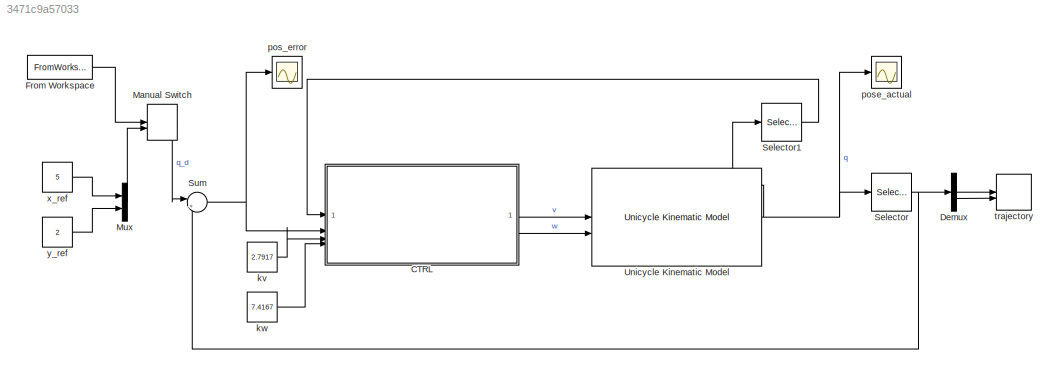
MODEL slx_3471c9a57033
KIND model
CONFIG AbsTol = auto
CONFIG EnableMultiTasking = off
CONFIG FixedStep = auto
CONFIG MaxStep = auto
CONFIG MinStep = auto
CONFIG RelTol = 1e-3
CONFIG SampleTimeConstraint = Unconstrained
CONFIG SolverName = VariableStepAuto
CONFIG StartTime = 0.0
CONFIG StopTime = 10
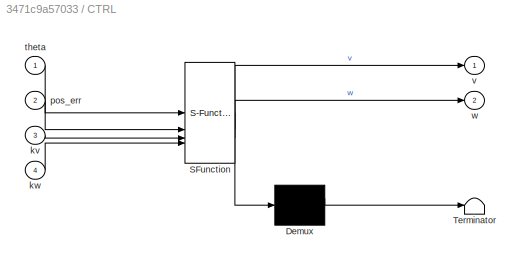
BLOCK [SubSystem] CTRL
  ErrorFcn = Stateflow.Translate.translate
  PermitHierarchicalResolution = ExplicitOnly
  SFBlockType = MATLAB Function
  TreatAsAtomicUnit = on
BLOCK [Demux] CTRL/ Demux 
  Outputs = 1
BLOCK [S-Function] CTRL/ SFunction 
  EnableBusSupport = off
  FunctionName = sf_sfun
  PortCounts = [4 3]
  SFcnIsStateOwnerBlock = off
  SFunctionDeploymentMode = off
  Tag = Stateflow S-Function 2
BLOCK [Terminator] CTRL/ Terminator 
BLOCK [Inport] CTRL/kv
  Port = 3
BLOCK [Inport] CTRL/kw
  Port = 4
BLOCK [Inport] CTRL/pos_err
  Port = 2
BLOCK [Inport] CTRL/theta
BLOCK [Outport] CTRL/v
BLOCK [Outport] CTRL/w
  Port = 2
BLOCK [Demux] Demux
  Outputs = 2
BLOCK [FromWorkspace] From Workspace
  VariableName = q_goal
BLOCK [ManualSwitch] Manual Switch
BLOCK [Mux] Mux
  DisplayOption = bar
  Inputs = 2
BLOCK [Selector] Selector
  IndexOptions = Index vector (dialog)
  Indices = [1 2]
  InputPortWidth = 3
  OutputSizes = 1
BLOCK [Selector] Selector1
  IndexOptions = Index vector (dialog)
  Indices = [3]
  InputPortWidth = 3
  OutputSizes = 1
BLOCK [Sum] Sum
  Inputs = |+-
BLOCK [Reference] Unicycle Kinematic Model  REF=robotmobilelib/Unicycle Kinematic Model
  SourceBlock = robotmobilelib/Unicycle Kinematic Model
  SourceType = Unicycle Kinematic Model
BLOCK [Constant] kv
  Value = 2.7917
BLOCK [Constant] kw
  Value = 7.4167
BLOCK [Scope] pos_error
  ActiveDisplayYMaximum = 116.62668553365748
  ActiveDisplayYMinimum = -256.17429974027243
  DataLoggingVariableName = ScopeData1
  Floating = off
  GraphicalSettings = {"AxesScalingProperties":{"AlignXAxis":"Center","AlignYAxis":"Center","AutoScaleXAxisLimits":false,"AxesScaling":"Manual","AxesScalingNumUpdates":10,"ExpandOnly":true,"ScaleAxesLimitsAtStop":false,"XAxisDataRange":100,"YAxisDataRange":80},"DisplayProperties":{"ColorOrder":["auto","auto","auto","auto","auto","auto","auto","auto","auto","auto","auto","auto","auto","auto","auto","auto","auto","auto",...<+2113ch>
  MultipleDisplayCache = [{"MaxYLimMag":226.27478329942264,"MaxYLimReal":116.62668553365748,"MinYLimMag":0,"MinYLimReal":-256.17429974027243,"PlotAsMagnitudePhase":false,"ShowGrid":true,"ShowLegend":false,"Title":"%<SignalLabel>","YLabel":""}]
  NumInputPorts = 1
  ScopeFrameLocation = window
  WasSavedAsWebScope = on
  WindowPosition = [1.000000,49.000000,1536.000000,793.000000,]
BLOCK [Scope] pose_actual
  ActiveDisplayYMaximum = 8.5892802665132866
  ActiveDisplayYMinimum = -37.155041353571882
  Floating = off
  GraphicalSettings = {"Style":{"BackgroundColor":[0.12941176470588237,0.12941176470588237,0.12941176470588237],"AxesColor":[0.07058823529411765,0.07058823529411765,0.07058823529411765],"LabelsColor":[0.8509803921568627,0.8509803921568627,0.8509803921568627],"PreserveColors":false,"Visible":[true,true,true],"LineStyle":["-","-","-"],"LineWidth":[1.5,1.5,1.5],"BarWidth":[0.9,0.9,0.9],"LineColor":["auto","auto","auto"],"...<+2200ch>
  MultipleDisplayCache = [{"MaxYLimMag":226.27478329942264,"MaxYLimReal":8.5892802665132866,"MinYLimMag":0,"MinYLimReal":-37.155041353571882,"PlotAsMagnitudePhase":false,"ShowGrid":true,"ShowLegend":false,"Title":"%<SignalLabel>","YLabel":""}]
  NumInputPorts = 1
  ScopeFrameLocation = window
  WasSavedAsWebScope = on
  WindowPosition = [1.000000,49.000000,1536.000000,793.000000,]
BLOCK [Record] trajectory
  CompatibilityTag = XY
  FileSettingsInternal = {"entries":[{"content":{"excelSettings":{"content":{},"type":"Streamout.ExcelSettings"},"parquetSettings":{"content":{},"type":"Streamout.ParquetSettings"}},"type":"Streamout.FileSettingStorage","uuid":""}],"packageUris":["http:\/\/schema.mathworks.com\/mf0\/streamout_blocks\/R2020a"],"version":"1.0"}
  FrameSettings = [0, 0]
  Layout = [1 1]
  NumPorts = 2.0
  SignalsInternal = {"entries":[{"content":{"signals":[{"content":{"blockPath":[],"dimensions":[1],"domain":"","lineColor":"#a2142f","plots":[ 1 ],"port":1,"signalID":1,"signalName":"Demux:1"},"type":"RecordBlkView.Signal","uuid":""},{"content":{"blockPath":[],"dimensions":[1],"domain":"","lineColor":"#139fff","plots":[ 1 ],"port":2,"signalID":2,"signalName":"Demux:2"},"type":"RecordBlkView.Signal","uuid":""}]},"type...<+138ch>
  VisualizationBindings = {"xyplotplugin":{"info":[{"series":[{"bindingParametersList":[{"parameter":"X-Axis","signalID":1,"signalName":"Demux:1"},{"parameter":"Y-Axis","signalID":2,"signalName":"Demux:2"}],"seriesID":0}],"subplotID":1}]}}
BLOCK [Constant] x_ref
  Value = 5
BLOCK [Constant] y_ref
  Value = 2
LINE CTRL:1 -> Unicycle Kinematic Model:1
LINE CTRL:2 -> Unicycle Kinematic Model:2
LINE Demux:1 -> trajectory:1
LINE Demux:2 -> trajectory:2
LINE From Workspace:1 -> Manual Switch:1
LINE Manual Switch:1 -> Sum:1
LINE Mux:1 -> Manual Switch:2
LINE Selector1:1 -> CTRL:1
NET Selector:1 -> Demux:1, Sum:2
NET Sum:1 -> CTRL:2, pos_error:1
NET Unicycle Kinematic Model:1 -> Selector1:1, Selector:1, pose_actual:1
LINE kv:1 -> CTRL:3
LINE kw:1 -> CTRL:4
LINE x_ref:1 -> Mux:1
LINE y_ref:1 -> Mux:2
note: NET lines group one-source signal fan-out (src -> all destinations, sorted); 1:1 wires keep LINE
CHART CTRL states=1 transitions=1
  STATE_LABEL 'eML_blk_kernel()'
  STATE_LABEL 'SCRIPT:\nfunction [v, w] = cartesian_regulation_crl(theta, pos_err, kv, kw)\n\nn = [cos(theta); sin(theta)];\ntarget_angle = atan2(pos_err(2), pos_err(1));\ngamma = wrapToPi(target_angle - theta);\n\nv = kv * dot(pos_err, n);\nw = kw * gamma;\n\nend'
CHART  states=0 transitions=0
